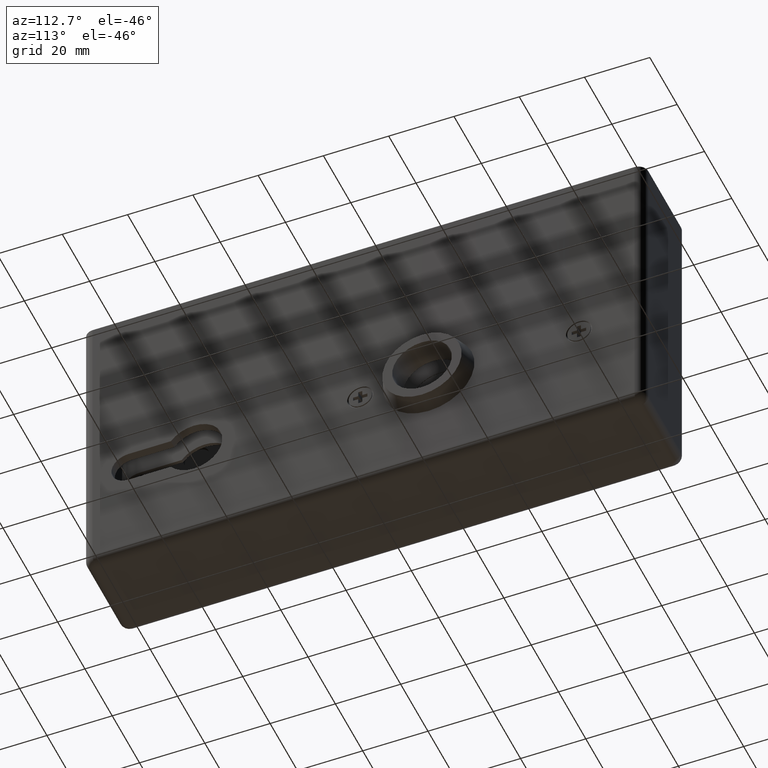
[diagram: clean part render]
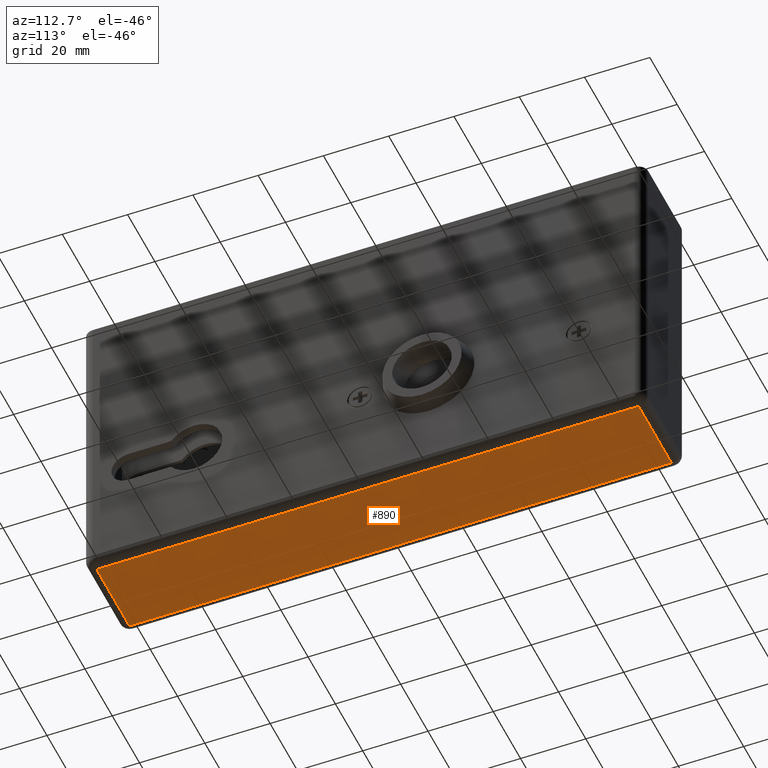
[diagram: same view with one face highlighted and labeled with its STEP entity id]
A machine part, auxiliary view. The second image highlights one B-rep face of the part: STEP entity #890.
In plain terms, the highlighted planar face has unit normal (0, -0, 1).
Its self-contained STEP definition (entity closure, byte-faithful):
#318 = VECTOR ( 'NONE', #11606, 1000.000000000000000 ) ;
#886 = CARTESIAN_POINT ( 'NONE',  ( 12.00000000000000000, -83.00000000000000000, -47.25000000000002842 ) ) ;
#890 = ADVANCED_FACE ( 'NONE', ( #20431 ), #19099, .F. ) ;
#3404 = DIRECTION ( 'NONE',  ( -0.000000000000000000, -1.000000000000000000, -1.613696256722611405E-16 ) ) ;
#3627 = VECTOR ( 'NONE', #6344, 1000.000000000000000 ) ;
#5701 = ORIENTED_EDGE ( 'NONE', *, *, #14207, .T. ) ;
#6344 = DIRECTION ( 'NONE',  ( -0.000000000000000000, 1.000000000000000000, 1.613696256722611405E-16 ) ) ;
#7250 = DIRECTION ( 'NONE',  ( 0.000000000000000000, -1.613696256722611405E-16, 1.000000000000000000 ) ) ;
#7570 = CARTESIAN_POINT ( 'NONE',  ( 15.00000000000000000, 85.99999999999998579, -47.25000000000000000 ) ) ;
#8909 = VERTEX_POINT ( 'NONE', #23994 ) ;
#8945 = VERTEX_POINT ( 'NONE', #886 ) ;
#10052 = CARTESIAN_POINT ( 'NONE',  ( -12.00000000000000000, -83.00000000000000000, -47.25000000000002842 ) ) ;
#11089 = CARTESIAN_POINT ( 'NONE',  ( 12.00000000000000000, -86.00000000000000000, -47.25000000000002842 ) ) ;
#11190 = DIRECTION ( 'NONE',  ( 1.000000000000000000, -0.000000000000000000, -0.000000000000000000 ) ) ;
#11531 = LINE ( 'NONE', #11089, #14252 ) ;
#11606 = DIRECTION ( 'NONE',  ( -1.000000000000000000, 0.000000000000000000, 0.000000000000000000 ) ) ;
#12228 = ORIENTED_EDGE ( 'NONE', *, *, #24214, .T. ) ;
#12269 = ORIENTED_EDGE ( 'NONE', *, *, #15870, .T. ) ;
#12727 = VERTEX_POINT ( 'NONE', #15364 ) ;
#13630 = CARTESIAN_POINT ( 'NONE',  ( 15.00000000000000000, -83.00000000000000000, -47.25000000000002842 ) ) ;
#13910 = EDGE_CURVE ( 'NONE', #12727, #8909, #16979, .T. ) ;
#14207 = EDGE_CURVE ( 'NONE', #8909, #8945, #11531, .T. ) ;
#14252 = VECTOR ( 'NONE', #3404, 1000.000000000000000 ) ;
#14489 = VERTEX_POINT ( 'NONE', #10052 ) ;
#15364 = CARTESIAN_POINT ( 'NONE',  ( -12.00000000000000000, 82.99999999999997158, -47.25000000000000000 ) ) ;
#15454 = AXIS2_PLACEMENT_3D ( 'NONE', #7570, #7250, #21061 ) ;
#15870 = EDGE_CURVE ( 'NONE', #8945, #14489, #24779, .T. ) ;
#16979 = LINE ( 'NONE', #18944, #19680 ) ;
#17646 = ORIENTED_EDGE ( 'NONE', *, *, #13910, .T. ) ;
#18944 = CARTESIAN_POINT ( 'NONE',  ( 15.00000000000000000, 82.99999999999997158, -47.25000000000000000 ) ) ;
#19099 = PLANE ( 'NONE',  #15454 ) ;
#19680 = VECTOR ( 'NONE', #11190, 1000.000000000000000 ) ;
#20431 = FACE_OUTER_BOUND ( 'NONE', #22020, .T. ) ;
#21061 = DIRECTION ( 'NONE',  ( 0.000000000000000000, -1.000000000000000000, -1.613696256722611405E-16 ) ) ;
#22020 = EDGE_LOOP ( 'NONE', ( #5701, #12269, #12228, #17646 ) ) ;
#23560 = CARTESIAN_POINT ( 'NONE',  ( -12.00000000000000000, 85.99999999999998579, -47.25000000000000000 ) ) ;
#23994 = CARTESIAN_POINT ( 'NONE',  ( 12.00000000000000000, 82.99999999999997158, -47.25000000000000000 ) ) ;
#24184 = LINE ( 'NONE', #23560, #3627 ) ;
#24214 = EDGE_CURVE ( 'NONE', #14489, #12727, #24184, .T. ) ;
#24779 = LINE ( 'NONE', #13630, #318 ) ;